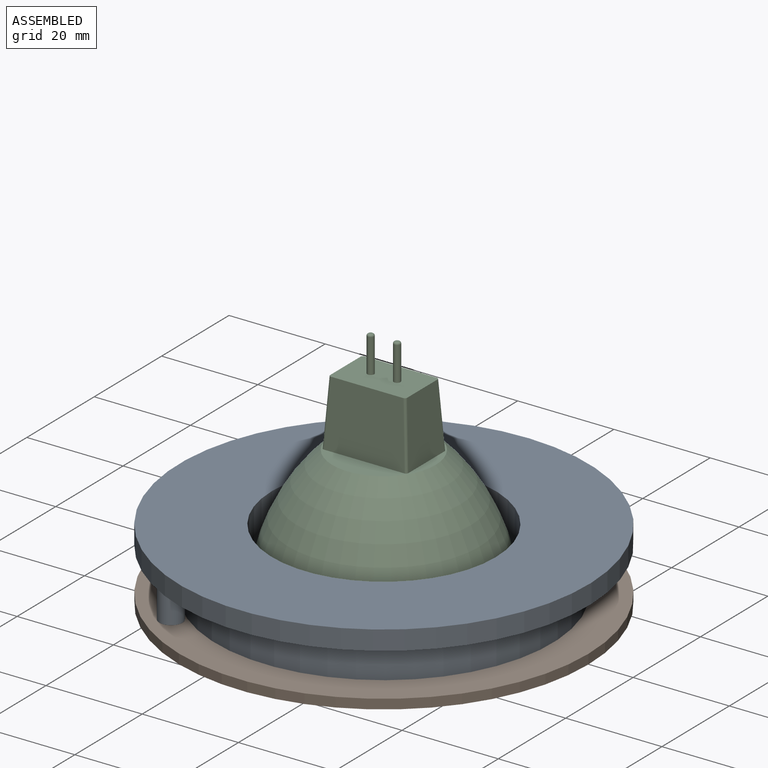
[diagram: assembled view]
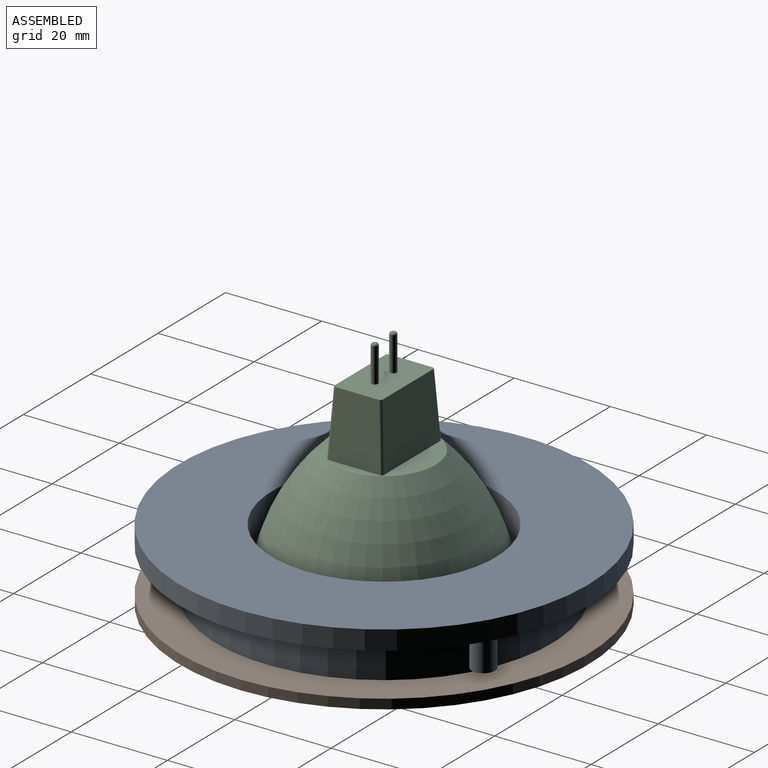
[diagram: assembled view, second angle]
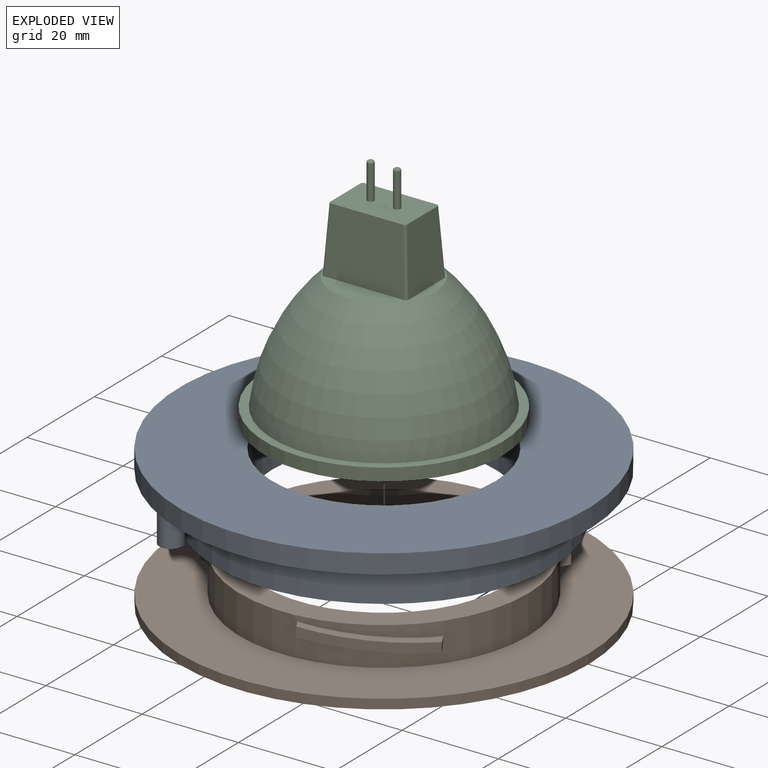
[diagram: exploded view]
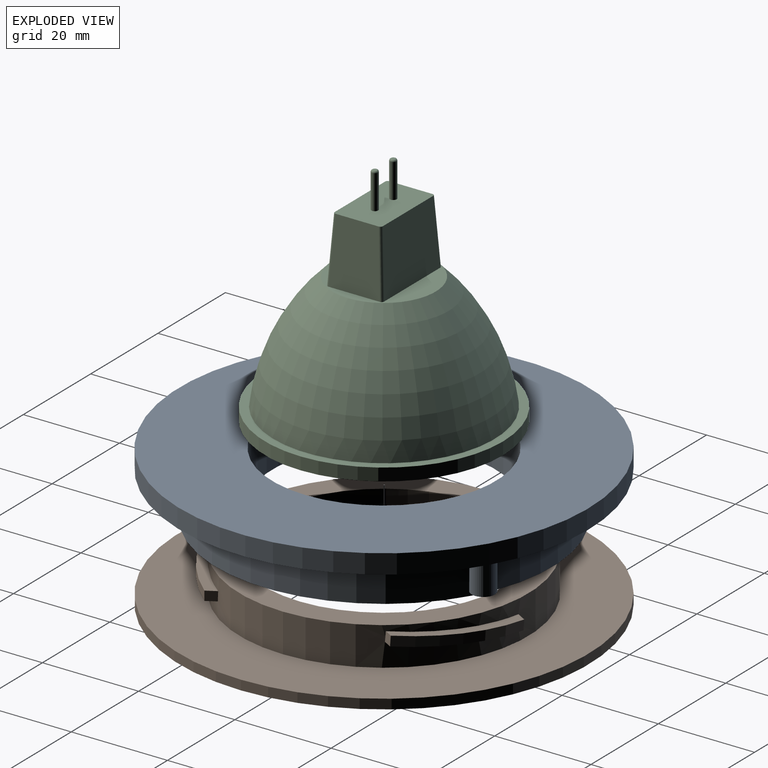
[diagram: exploded view, second angle]
ASSEMBLY  parts=3 mates=4
PART A: 29 faces, bbox 85x85x13 mm
  f0: cylinder r=35mm len=70mm, axis (0,0,-1), area 1979.2mm2, adj f8,f24
  f1: cylinder r=23.25mm len=46.5mm, axis (0,0,-1), area 1504.7mm2, adj f7,f22
  f2: cylinder r=24.75mm len=49.5mm, axis (0,0,-1), area 979.7mm2, adj f9,f22
  f3: cylinder r=32.25mm len=64.5mm, axis (0,0,-1), area 1669.6mm2, adj f4,f5,f6,f8,f9,f10,f13,f14
  f4: plane 2.32x2mm, normal (0,-1,0.07), area 4.6mm2, adj f3,f6,f10,f11
  f5: plane 2.13x2mm, normal (0,1,-0.07), area 4.2mm2, adj f3,f6,f10,f11
  f6: plane 24.96x4.82mm, normal (0,0.07,1), area 51.6mm2, adj f3,f4,f5,f11
  f7: plane 85x85mm, normal (0,0,1), area 3976.3mm2, adj f1,f23
  f8: plane 70x70mm, normal (0,0,-1), area 581mm2, adj f0,f3
  f9: plane 64.5x64.5mm, normal (0,0,-1), area 1343mm2, adj f2,f3
  f10: plane 24.96x4.82mm, normal (0,-0.07,-1), area 51.6mm2, adj f3,f4,f5,f11
  f11: cylinder r=30.25mm len=25.08mm, axis (0,-0.07,-1), area 51.5mm2, adj f4,f5,f6,f10
  f12: cylinder r=30.25mm len=21.81mm, axis (0.06,0.03,-1), area 51.5mm2, adj f13,f14,f15,f16
  f13: plane 22.78x14.28mm, normal (0.06,0.03,-1), area 51.6mm2, adj f3,f12,f15,f16
  f14: plane 22.75x14.33mm, normal (-0.06,-0.03,1), area 51.6mm2, adj f3,f12,f15,f16
  f15: plane 2x1.92mm, normal (-0.86,-0.5,-0.07), area 4.2mm2, adj f3,f12,f13,f14
  f16: plane 2.03x2mm, normal (0.86,0.5,0.07), area 4.6mm2, adj f3,f12,f13,f14
  f17: plane 2.08x2mm, normal (-0.86,0.5,0.07), area 4.6mm2, adj f3,f19,f20,f21
  f18: plane 2x1.87mm, normal (0.86,-0.5,-0.07), area 4.2mm2, adj f3,f19,f20,f21
  f19: plane 22.68x14.45mm, normal (0.06,-0.03,1), area 51.6mm2, adj f3,f17,f18,f21
  f20: plane 22.65x14.5mm, normal (-0.06,0.03,-1), area 51.6mm2, adj f3,f17,f18,f21
  f21: cylinder r=30.25mm len=21.62mm, axis (-0.06,0.03,-1), area 51.5mm2, adj f17,f18,f19,f20
  f22: plane 49.5x49.5mm, normal (0,0,-1), area 226.2mm2, adj f1,f2
  f23: cylinder r=42.5mm len=85mm, axis (0,0,1), area 1068.1mm2, adj f7,f24
  f24: plane 85x85mm, normal (0,0,-1), area 1789.9mm2, adj f0,f23,f25,f27
  f25: cylinder r=2.4mm len=6mm, axis (0,0,1), area 90.5mm2, adj f24,f26
  f26: plane 4.8x4.8mm, normal (0,0,-1), area 18.1mm2, adj f25
  f27: cylinder r=2.4mm len=6mm, axis (0,0,1), area 90.5mm2, adj f24,f28
  f28: plane 4.8x4.8mm, normal (0,0,-1), area 18.1mm2, adj f27
PART B: 23 faces, bbox 85x85x10 mm
  f0: cylinder r=30mm len=60mm, axis (0,0,-1), area 1353.3mm2, adj f1,f2,f7,f9,f10,f11,f14,f15
  f1: plane 2.35x2mm, normal (0,-1,-0.07), area 4.6mm2, adj f0,f10,f11,f12
  f2: plane 2.05x2mm, normal (0,1,0.07), area 4mm2, adj f0,f10,f11,f12
  f3: plane 50x50mm, normal (0,0,1), area 301.6mm2, adj f4,f8
  f4: cylinder r=23mm len=46mm, axis (0,0,1), area 289mm2, adj f3,f6
  f5: cylinder r=42.5mm len=85mm, axis (0,0,1), area 534.1mm2, adj f6,f7
  f6: plane 85x85mm, normal (0,0,-1), area 4012.6mm2, adj f4,f5
  f7: plane 85x85mm, normal (0,0,1), area 2847.1mm2, adj f0,f5
  f8: cylinder r=25mm len=50mm, axis (0,0,-1), area 1256.6mm2, adj f3,f9
  f9: plane 60x60mm, normal (0,0,1), area 863.9mm2, adj f0,f8
  f10: plane 24.94x4.75mm, normal (0,-0.07,1), area 51.3mm2, adj f0,f1,f2,f12
  f11: plane 24.94x4.75mm, normal (0,0.07,-1), area 51.3mm2, adj f0,f1,f2,f12
  f12: cylinder r=32mm len=25.08mm, axis (0,-0.07,1), area 51.4mm2, adj f1,f2,f10,f11
  f13: cylinder r=32mm len=21.87mm, axis (0.06,0.03,1), area 51.4mm2, adj f14,f15,f16,f17
  f14: plane 22.74x14.25mm, normal (0.06,0.03,1), area 51.3mm2, adj f0,f13,f16,f17
  f15: plane 22.77x14.19mm, normal (-0.06,-0.03,-1), area 51.3mm2, adj f0,f13,f16,f17
  f16: plane 2x1.79mm, normal (-0.86,-0.5,0.07), area 4mm2, adj f0,f13,f14,f15
  f17: plane 2.11x2mm, normal (0.86,0.5,-0.07), area 4.6mm2, adj f0,f13,f14,f15
  f18: plane 2.05x2mm, normal (-0.86,0.5,-0.07), area 4.6mm2, adj f0,f20,f21,f22
  f19: plane 2x1.85mm, normal (0.86,-0.5,0.07), area 4mm2, adj f0,f20,f21,f22
  f20: plane 22.62x14.45mm, normal (-0.06,0.03,1), area 51.3mm2, adj f0,f18,f19,f22
  f21: plane 22.59x14.5mm, normal (0.06,-0.03,-1), area 51.3mm2, adj f0,f18,f19,f22
  f22: cylinder r=32mm len=21.57mm, axis (-0.06,0.03,1), area 51.4mm2, adj f18,f19,f20,f21
PART C: 20 faces, bbox 49.5x49.5x48.1 mm
  f0: plane 49.5x49.5mm, normal (0,0,-1), area 1924.4mm2, adj f4
  f1: plane 21.5x21.5mm, normal (0,0,1), area 156.2mm2, adj f2,f6,f7,f8,f9,f16,f17,f18
  f2: revolved ~46x46mm, area 3204.2mm2, adj f1,f3
  f3: plane 49.5x49.5mm, normal (0,0,1), area 262.5mm2, adj f2,f4
  f4: cylinder r=24.75mm len=49.5mm, axis (0,0,-1), area 404.3mm2, adj f0,f3
  f5: plane 16x10mm, normal (0,0,1), area 156.7mm2, adj f6,f7,f8,f9,f10,f12,f16,f17
  f6: plane 13.6x10.7mm, normal (-1,0,0.06), area 134.2mm2, adj f1,f5,f18,f19
  f7: plane 16.7x13.6mm, normal (0,-1,0.06), area 216mm2, adj f1,f5,f17,f18
  f8: plane 13.6x10.7mm, normal (1,0,0.06), area 134.2mm2, adj f1,f5,f16,f17
  f9: plane 16.7x13.6mm, normal (0,1,0.06), area 216mm2, adj f1,f5,f16,f19
  f10: cylinder r=0.7mm len=7.1mm, axis (0,0,-1), area 31.2mm2, adj f5,f15
  f11: plane 0.6x0.6mm, normal (0,0,1), area 0.3mm2, adj f15
  f12: cylinder r=0.7mm len=7.1mm, axis (0,0,-1), area 31.2mm2, adj f5,f14
  f13: plane 0.6x0.6mm, normal (0,0,1), area 0.3mm2, adj f14
  f14: torus R=0.3mm, axis (0,0,1), area 2.2mm2, adj f12,f13
  f15: torus R=0.3mm, axis (0,0,1), area 2.2mm2, adj f10,f11
  f16: cylinder r=0.5mm len=13.63mm, axis (-0.06,-0.06,1), area 10.7mm2, adj f1,f5,f8,f9
  f17: cylinder r=0.5mm len=13.63mm, axis (0.06,-0.06,-1), area 10.7mm2, adj f1,f5,f7,f8
  f18: cylinder r=0.5mm len=13.63mm, axis (0.06,0.06,1), area 10.7mm2, adj f1,f5,f6,f7
  f19: cylinder r=0.5mm len=13.63mm, axis (-0.06,0.06,-1), area 10.7mm2, adj f1,f5,f6,f9
PLACE A rot(axis=(0,0,1),60deg) t=(-29.32,-3.53,-3.95)mm
PLACE B t=(-29.32,-3.53,-3.95)mm
PLACE C t=(-29.32,-3.53,-3.95)mm fixed
MATE planar A.f23 <-> B.f5  axis (0,0,-1) through (-29.32,-3.53,-3.95)mm
MATE planar B.f0 <-> C.f4  axis (0,0,1) through (-29.32,-3.53,-3.95)mm
MATE cylindrical B.f8 <-> C.f4  axis (0,0,-1) through (-29.32,-3.53,0.05)mm
MATE cylindrical A.f2 <-> B.f8  axis (0,0,-1) through (-29.32,-3.53,1.9)mm
